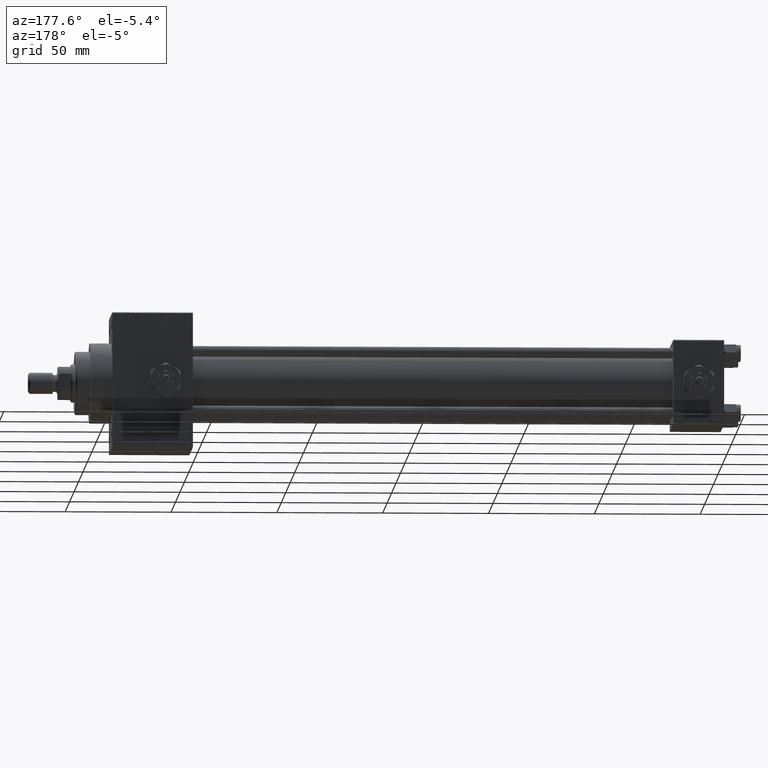
[diagram: clean part render]
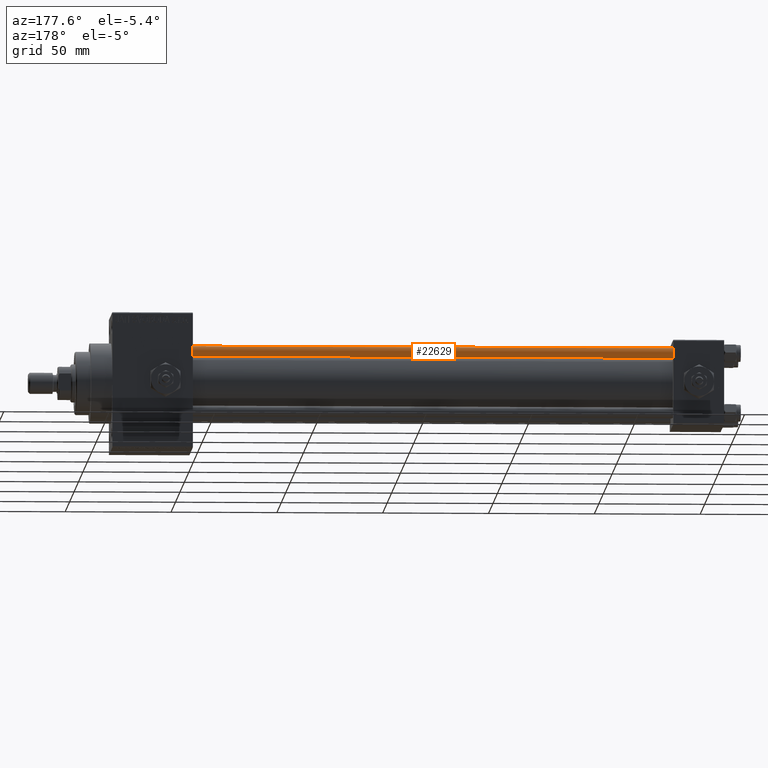
[diagram: same view with one face highlighted and labeled with its STEP entity id]
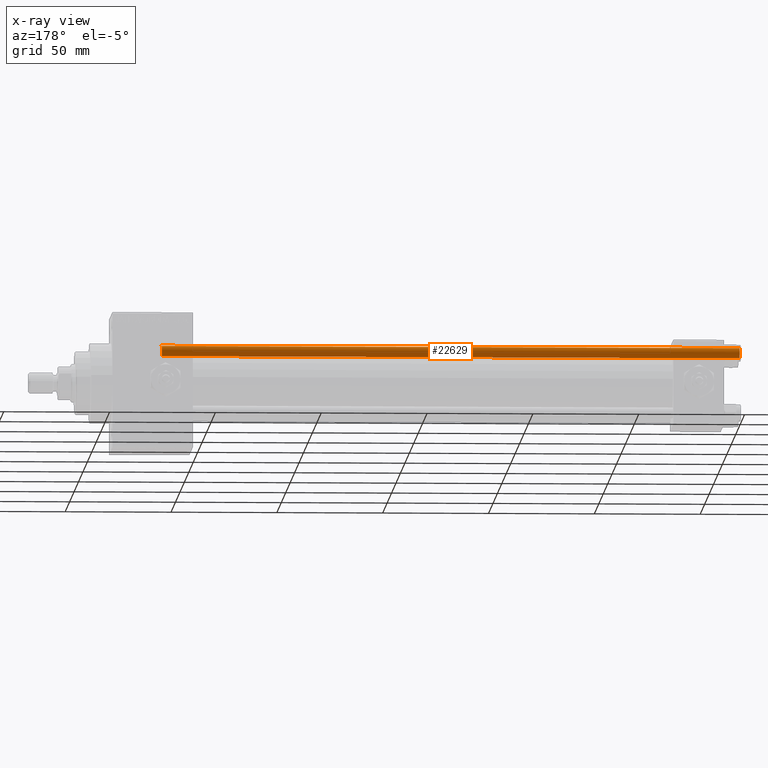
[diagram: x-ray of the same camera — body ghosted, the highlighted face saturated]
A machine part, auxiliary view. The second image highlights one B-rep face of the part: STEP entity #22629.
The next image is the same camera in x-ray: the body ghosted, the highlighted face saturated — about 0% of this face is hidden behind the body in this view.
In plain terms, the highlighted cylindrical surface (edge-blend (fillet) strip) has radius 2.5 mm, axis along (-1, -0, 0).
Its self-contained STEP definition (entity closure, byte-faithful):
#1619 = AXIS2_PLACEMENT_3D ( 'NONE', #6918, #10915, #36446 ) ;
#3944 = ORIENTED_EDGE ( 'NONE', *, *, #27618, .T. ) ;
#5208 = EDGE_LOOP ( 'NONE', ( #3944, #7648, #32310, #26031 ) ) ;
#6736 = LINE ( 'NONE', #29989, #43938 ) ;
#6918 = CARTESIAN_POINT ( 'NONE',  ( 0.000000000000000000, 0.000000000000000000, 0.5000000000000004441 ) ) ;
#6992 = EDGE_CURVE ( 'NONE', #11773, #47965, #31857, .T. ) ;
#7076 = DIRECTION ( 'NONE',  ( 1.000000000000000000, 0.000000000000000000, 0.000000000000000000 ) ) ;
#7648 = ORIENTED_EDGE ( 'NONE', *, *, #31769, .T. ) ;
#9536 = CARTESIAN_POINT ( 'NONE',  ( -2.500000000000000000, 0.000000000000000000, 0.5000000000000004441 ) ) ;
#10740 = DIRECTION ( 'NONE',  ( -0.000000000000000000, -0.000000000000000000, -1.000000000000000000 ) ) ;
#10915 = DIRECTION ( 'NONE',  ( -0.000000000000000000, -0.000000000000000000, 1.000000000000000000 ) ) ;
#11773 = VERTEX_POINT ( 'NONE', #20351 ) ;
#13288 = AXIS2_PLACEMENT_3D ( 'NONE', #29831, #41362, #7076 ) ;
#19757 = VERTEX_POINT ( 'NONE', #25643 ) ;
#20351 = CARTESIAN_POINT ( 'NONE',  ( 2.500000000000000000, 3.061616997868383141E-16, 0.5000000000000004441 ) ) ;
#21854 = CARTESIAN_POINT ( 'NONE',  ( 2.500000000000000000, 3.061616997868383141E-16, 273.5000000000000000 ) ) ;
#22629 = ADVANCED_FACE ( 'NONE', ( #45937 ), #45682, .T. ) ;
#22895 = CARTESIAN_POINT ( 'NONE',  ( 0.000000000000000000, 0.000000000000000000, 274.0000000000000000 ) ) ;
#25643 = CARTESIAN_POINT ( 'NONE',  ( -2.500000000000000000, 0.000000000000000000, 273.5000000000000000 ) ) ;
#26031 = ORIENTED_EDGE ( 'NONE', *, *, #46694, .F. ) ;
#26064 = LINE ( 'NONE', #26304, #33846 ) ;
#26304 = CARTESIAN_POINT ( 'NONE',  ( -2.500000000000000000, 0.000000000000000000, 274.0000000000000000 ) ) ;
#27618 = EDGE_CURVE ( 'NONE', #19757, #40880, #38067, .T. ) ;
#27640 = DIRECTION ( 'NONE',  ( -1.000000000000000000, 0.000000000000000000, 0.000000000000000000 ) ) ;
#29831 = CARTESIAN_POINT ( 'NONE',  ( 0.000000000000000000, 0.000000000000000000, 273.5000000000000000 ) ) ;
#29989 = CARTESIAN_POINT ( 'NONE',  ( 2.500000000000000000, 3.061616997868383141E-16, 274.0000000000000000 ) ) ;
#31769 = EDGE_CURVE ( 'NONE', #40880, #11773, #6736, .T. ) ;
#31857 = CIRCLE ( 'NONE', #1619, 2.500000000000000000 ) ;
#32310 = ORIENTED_EDGE ( 'NONE', *, *, #6992, .T. ) ;
#33846 = VECTOR ( 'NONE', #42094, 1000.000000000000000 ) ;
#35887 = DIRECTION ( 'NONE',  ( -0.000000000000000000, -0.000000000000000000, -1.000000000000000000 ) ) ;
#36294 = AXIS2_PLACEMENT_3D ( 'NONE', #22895, #35887, #27640 ) ;
#36446 = DIRECTION ( 'NONE',  ( 1.000000000000000000, 0.000000000000000000, 0.000000000000000000 ) ) ;
#38067 = CIRCLE ( 'NONE', #13288, 2.500000000000000000 ) ;
#40880 = VERTEX_POINT ( 'NONE', #21854 ) ;
#41362 = DIRECTION ( 'NONE',  ( 0.000000000000000000, 0.000000000000000000, -1.000000000000000000 ) ) ;
#42094 = DIRECTION ( 'NONE',  ( -0.000000000000000000, -0.000000000000000000, -1.000000000000000000 ) ) ;
#43938 = VECTOR ( 'NONE', #10740, 1000.000000000000000 ) ;
#45682 = CYLINDRICAL_SURFACE ( 'NONE', #36294, 2.500000000000000000 ) ;
#45937 = FACE_OUTER_BOUND ( 'NONE', #5208, .T. ) ;
#46694 = EDGE_CURVE ( 'NONE', #19757, #47965, #26064, .T. ) ;
#47965 = VERTEX_POINT ( 'NONE', #9536 ) ;